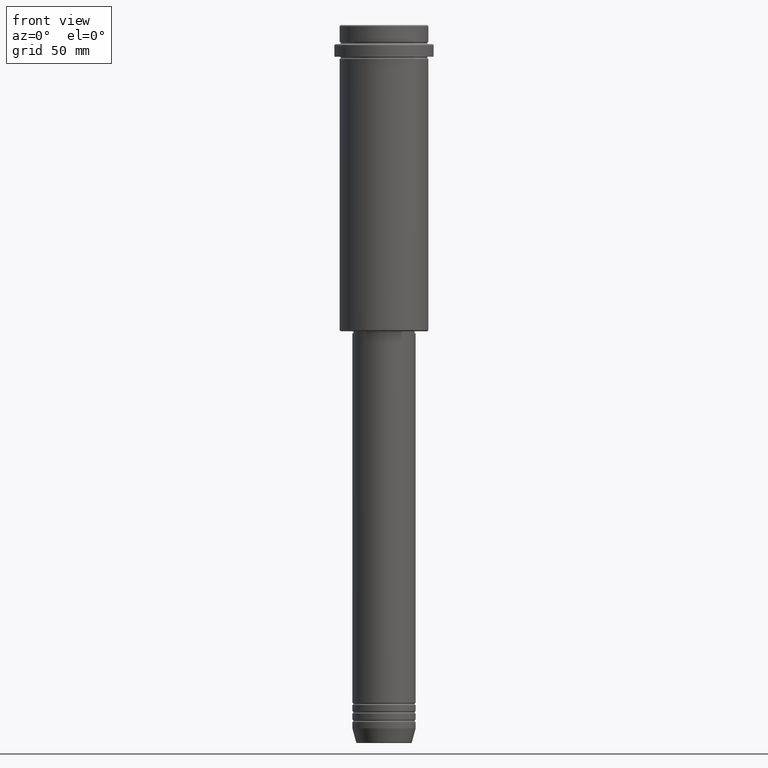
[diagram: clean part render]
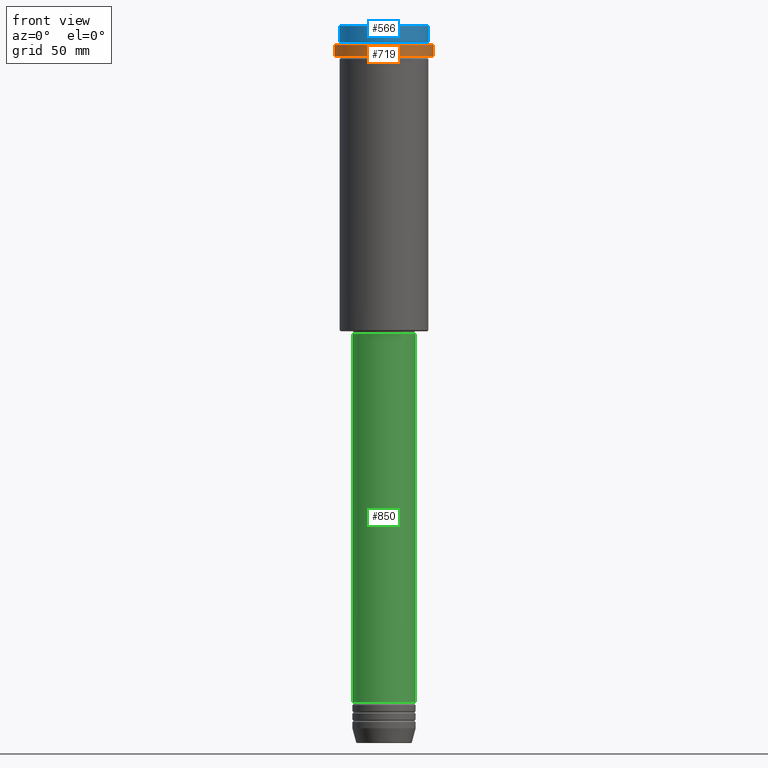
[diagram: same view with three faces highlighted in distinct colors, each labeled with its STEP entity id]
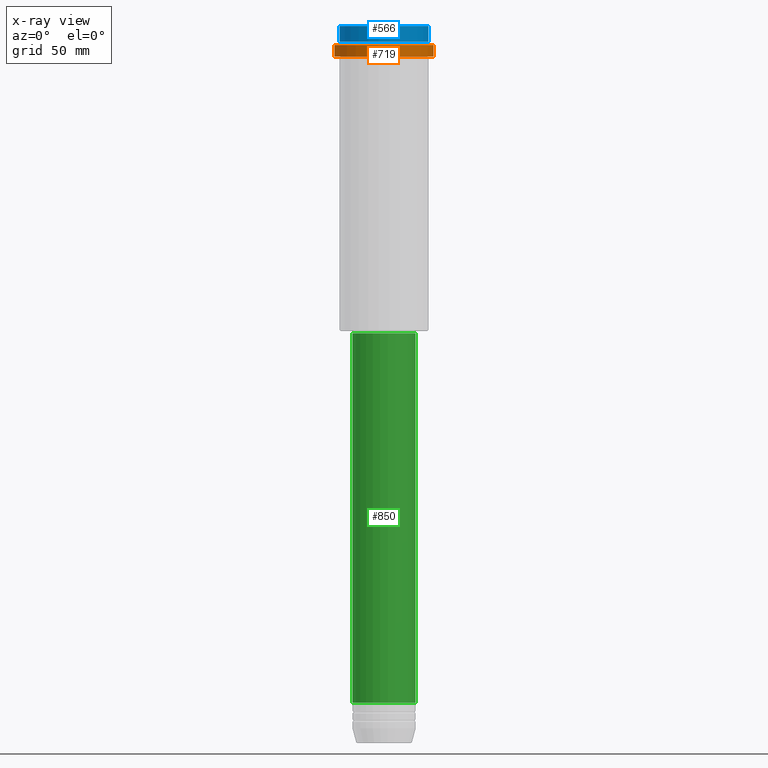
[diagram: x-ray of the same camera — body ghosted, the three highlighted faces saturated]
A machine part, front view with three faces highlighted in distinct colors.
The next image is the same camera in x-ray (body ghosted, the three faces saturated) — at least one of them is partly hidden behind the body in this view.
Their STEP definitions:

[orange] entity #719 — the highlighted cylindrical surface (partial cylindrical patch) has radius 23.5 mm, axis along (-0, -0, 1).
#108 = ORIENTED_EDGE ( 'NONE', *, *, #129, .T. ) ;
#129 = EDGE_CURVE ( 'NONE', #636, #786, #1362, .T. ) ;
#171 = VECTOR ( 'NONE', #1354, 1000.000000000000000 ) ;
#200 = EDGE_LOOP ( 'NONE', ( #590, #1337, #108, #374 ) ) ;
#245 = CARTESIAN_POINT ( 'NONE',  ( 23.50000000000000000, 0.000000000000000000, 0.000000000000000000 ) ) ;
#246 = CARTESIAN_POINT ( 'NONE',  ( -23.50000000000000000, 2.877919977996280320E-15, 0.000000000000000000 ) ) ;
#267 = VECTOR ( 'NONE', #662, 1000.000000000000000 ) ;
#277 = CARTESIAN_POINT ( 'NONE',  ( -23.50000000000000711, 2.877919977996281109E-15, -15.00000000000000178 ) ) ;
#297 = EDGE_CURVE ( 'NONE', #1119, #636, #725, .T. ) ;
#300 = DIRECTION ( 'NONE',  ( -0.000000000000000000, -0.000000000000000000, 1.000000000000000000 ) ) ;
#327 = LINE ( 'NONE', #246, #267 ) ;
#374 = ORIENTED_EDGE ( 'NONE', *, *, #418, .T. ) ;
#418 = EDGE_CURVE ( 'NONE', #786, #1053, #1176, .T. ) ;
#504 = DIRECTION ( 'NONE',  ( 1.000000000000000000, 0.000000000000000000, 0.000000000000000000 ) ) ;
#569 = AXIS2_PLACEMENT_3D ( 'NONE', #781, #765, #1195 ) ;
#590 = ORIENTED_EDGE ( 'NONE', *, *, #1244, .F. ) ;
#634 = CARTESIAN_POINT ( 'NONE',  ( 0.000000000000000000, 0.000000000000000000, -15.00000000000000178 ) ) ;
#636 = VERTEX_POINT ( 'NONE', #1131 ) ;
#662 = DIRECTION ( 'NONE',  ( -0.000000000000000000, -0.000000000000000000, 1.000000000000000000 ) ) ;
#719 = ADVANCED_FACE ( 'NONE', ( #1376 ), #1381, .T. ) ;
#720 = DIRECTION ( 'NONE',  ( 1.000000000000000000, 0.000000000000000000, 0.000000000000000000 ) ) ;
#725 = CIRCLE ( 'NONE', #767, 23.50000000000000355 ) ;
#765 = DIRECTION ( 'NONE',  ( 0.000000000000000000, 0.000000000000000000, -1.000000000000000000 ) ) ;
#767 = AXIS2_PLACEMENT_3D ( 'NONE', #634, #1261, #720 ) ;
#781 = CARTESIAN_POINT ( 'NONE',  ( 0.000000000000000000, 0.000000000000000000, -9.499999999999973355 ) ) ;
#786 = VERTEX_POINT ( 'NONE', #1063 ) ;
#1053 = VERTEX_POINT ( 'NONE', #1328 ) ;
#1063 = CARTESIAN_POINT ( 'NONE',  ( 23.50000000000000000, 0.000000000000000000, -9.499999999999973355 ) ) ;
#1119 = VERTEX_POINT ( 'NONE', #277 ) ;
#1131 = CARTESIAN_POINT ( 'NONE',  ( 23.50000000000000355, 0.000000000000000000, -15.00000000000000178 ) ) ;
#1171 = CARTESIAN_POINT ( 'NONE',  ( 0.000000000000000000, 0.000000000000000000, 0.000000000000000000 ) ) ;
#1176 = CIRCLE ( 'NONE', #569, 23.50000000000000000 ) ;
#1195 = DIRECTION ( 'NONE',  ( 1.000000000000000000, 0.000000000000000000, 0.000000000000000000 ) ) ;
#1243 = AXIS2_PLACEMENT_3D ( 'NONE', #1171, #300, #504 ) ;
#1244 = EDGE_CURVE ( 'NONE', #1119, #1053, #327, .T. ) ;
#1261 = DIRECTION ( 'NONE',  ( -0.000000000000000000, -0.000000000000000000, 1.000000000000000000 ) ) ;
#1328 = CARTESIAN_POINT ( 'NONE',  ( -23.50000000000000000, 2.877919977996280320E-15, -9.499999999999973355 ) ) ;
#1337 = ORIENTED_EDGE ( 'NONE', *, *, #297, .T. ) ;
#1354 = DIRECTION ( 'NONE',  ( -0.000000000000000000, -0.000000000000000000, 1.000000000000000000 ) ) ;
#1362 = LINE ( 'NONE', #245, #171 ) ;
#1376 = FACE_OUTER_BOUND ( 'NONE', #200, .T. ) ;
#1381 = CYLINDRICAL_SURFACE ( 'NONE', #1243, 23.50000000000000000 ) ;

[blue] entity #566 — the highlighted cylindrical surface (partial cylindrical patch) has radius 21 mm, axis along (-0, -0, 1).
#24 = ORIENTED_EDGE ( 'NONE', *, *, #1260, .T. ) ;
#26 = CARTESIAN_POINT ( 'NONE',  ( 20.99999999999999645, 0.000000000000000000, 0.000000000000000000 ) ) ;
#35 = CIRCLE ( 'NONE', #1019, 20.99999999999999645 ) ;
#71 = CARTESIAN_POINT ( 'NONE',  ( 0.000000000000000000, 0.000000000000000000, -0.5000000000000628386 ) ) ;
#169 = LINE ( 'NONE', #507, #664 ) ;
#198 = DIRECTION ( 'NONE',  ( -0.000000000000000000, -0.000000000000000000, 1.000000000000000000 ) ) ;
#215 = EDGE_CURVE ( 'NONE', #1356, #1104, #35, .T. ) ;
#272 = FACE_OUTER_BOUND ( 'NONE', #541, .T. ) ;
#315 = ORIENTED_EDGE ( 'NONE', *, *, #692, .T. ) ;
#325 = AXIS2_PLACEMENT_3D ( 'NONE', #71, #1145, #1285 ) ;
#392 = CARTESIAN_POINT ( 'NONE',  ( 20.99999999999999645, 0.000000000000000000, -7.999999999999998224 ) ) ;
#432 = LINE ( 'NONE', #26, #702 ) ;
#437 = CIRCLE ( 'NONE', #325, 20.99999999999999645 ) ;
#461 = CARTESIAN_POINT ( 'NONE',  ( -20.99999999999999645, 2.571758278209441267E-15, -0.5000000000000628386 ) ) ;
#493 = DIRECTION ( 'NONE',  ( -0.000000000000000000, -0.000000000000000000, 1.000000000000000000 ) ) ;
#507 = CARTESIAN_POINT ( 'NONE',  ( -20.99999999999999645, 2.571758278209441267E-15, 0.000000000000000000 ) ) ;
#512 = DIRECTION ( 'NONE',  ( 1.000000000000000000, 0.000000000000000000, 0.000000000000000000 ) ) ;
#537 = VERTEX_POINT ( 'NONE', #461 ) ;
#541 = EDGE_LOOP ( 'NONE', ( #875, #565, #24, #315 ) ) ;
#565 = ORIENTED_EDGE ( 'NONE', *, *, #215, .T. ) ;
#566 = ADVANCED_FACE ( 'NONE', ( #272 ), #1359, .T. ) ;
#664 = VECTOR ( 'NONE', #493, 1000.000000000000000 ) ;
#692 = EDGE_CURVE ( 'NONE', #893, #537, #437, .T. ) ;
#702 = VECTOR ( 'NONE', #1121, 1000.000000000000000 ) ;
#727 = CARTESIAN_POINT ( 'NONE',  ( 0.000000000000000000, 0.000000000000000000, -7.999999999999998224 ) ) ;
#875 = ORIENTED_EDGE ( 'NONE', *, *, #1170, .F. ) ;
#893 = VERTEX_POINT ( 'NONE', #970 ) ;
#914 = CARTESIAN_POINT ( 'NONE',  ( 0.000000000000000000, 0.000000000000000000, 0.000000000000000000 ) ) ;
#970 = CARTESIAN_POINT ( 'NONE',  ( 20.99999999999999645, 0.000000000000000000, -0.5000000000000628386 ) ) ;
#1019 = AXIS2_PLACEMENT_3D ( 'NONE', #727, #198, #512 ) ;
#1104 = VERTEX_POINT ( 'NONE', #392 ) ;
#1121 = DIRECTION ( 'NONE',  ( -0.000000000000000000, -0.000000000000000000, 1.000000000000000000 ) ) ;
#1145 = DIRECTION ( 'NONE',  ( 0.000000000000000000, 0.000000000000000000, -1.000000000000000000 ) ) ;
#1170 = EDGE_CURVE ( 'NONE', #1356, #537, #169, .T. ) ;
#1221 = CARTESIAN_POINT ( 'NONE',  ( -20.99999999999999645, 2.571758278209441267E-15, -7.999999999999998224 ) ) ;
#1235 = DIRECTION ( 'NONE',  ( 1.000000000000000000, 0.000000000000000000, 0.000000000000000000 ) ) ;
#1260 = EDGE_CURVE ( 'NONE', #1104, #893, #432, .T. ) ;
#1262 = AXIS2_PLACEMENT_3D ( 'NONE', #914, #1344, #1235 ) ;
#1285 = DIRECTION ( 'NONE',  ( 1.000000000000000000, 0.000000000000000000, 0.000000000000000000 ) ) ;
#1344 = DIRECTION ( 'NONE',  ( -0.000000000000000000, -0.000000000000000000, 1.000000000000000000 ) ) ;
#1356 = VERTEX_POINT ( 'NONE', #1221 ) ;
#1359 = CYLINDRICAL_SURFACE ( 'NONE', #1262, 20.99999999999999645 ) ;

[green] entity #850 — the highlighted cylindrical surface (edge-blend (fillet) strip) has radius 15 mm, axis along (-0, -0, 1).
#136 = DIRECTION ( 'NONE',  ( -0.000000000000000000, -0.000000000000000000, 1.000000000000000000 ) ) ;
#156 = DIRECTION ( 'NONE',  ( 1.000000000000000000, 0.000000000000000000, 0.000000000000000000 ) ) ;
#230 = LINE ( 'NONE', #373, #423 ) ;
#263 = DIRECTION ( 'NONE',  ( -0.000000000000000000, -0.000000000000000000, 1.000000000000000000 ) ) ;
#268 = AXIS2_PLACEMENT_3D ( 'NONE', #308, #319, #1297 ) ;
#308 = CARTESIAN_POINT ( 'NONE',  ( 0.000000000000000000, 0.000000000000000000, 0.000000000000000000 ) ) ;
#319 = DIRECTION ( 'NONE',  ( -0.000000000000000000, -0.000000000000000000, 1.000000000000000000 ) ) ;
#334 = VECTOR ( 'NONE', #435, 1000.000000000000000 ) ;
#340 = CARTESIAN_POINT ( 'NONE',  ( -15.00000000000000000, 1.836970198721029589E-15, -145.9999999999999432 ) ) ;
#354 = VERTEX_POINT ( 'NONE', #1304 ) ;
#373 = CARTESIAN_POINT ( 'NONE',  ( -15.00000000000000000, 1.836970198721029589E-15, 0.000000000000000000 ) ) ;
#423 = VECTOR ( 'NONE', #1034, 1000.000000000000000 ) ;
#427 = CYLINDRICAL_SURFACE ( 'NONE', #268, 15.00000000000000000 ) ;
#435 = DIRECTION ( 'NONE',  ( -0.000000000000000000, -0.000000000000000000, 1.000000000000000000 ) ) ;
#436 = EDGE_CURVE ( 'NONE', #1196, #855, #1189, .T. ) ;
#441 = FACE_OUTER_BOUND ( 'NONE', #495, .T. ) ;
#463 = VERTEX_POINT ( 'NONE', #340 ) ;
#495 = EDGE_LOOP ( 'NONE', ( #1379, #988, #942, #835 ) ) ;
#607 = EDGE_CURVE ( 'NONE', #354, #1196, #782, .T. ) ;
#646 = CARTESIAN_POINT ( 'NONE',  ( 15.00000000000000000, 0.000000000000000000, -145.9999999999999432 ) ) ;
#655 = EDGE_CURVE ( 'NONE', #463, #855, #1148, .T. ) ;
#683 = CARTESIAN_POINT ( 'NONE',  ( 0.000000000000000000, 0.000000000000000000, -320.9999999999998863 ) ) ;
#782 = CIRCLE ( 'NONE', #946, 15.00000000000000000 ) ;
#835 = ORIENTED_EDGE ( 'NONE', *, *, #655, .F. ) ;
#850 = ADVANCED_FACE ( 'NONE', ( #441 ), #427, .T. ) ;
#855 = VERTEX_POINT ( 'NONE', #646 ) ;
#942 = ORIENTED_EDGE ( 'NONE', *, *, #436, .T. ) ;
#946 = AXIS2_PLACEMENT_3D ( 'NONE', #683, #136, #156 ) ;
#960 = EDGE_CURVE ( 'NONE', #354, #463, #230, .T. ) ;
#988 = ORIENTED_EDGE ( 'NONE', *, *, #607, .T. ) ;
#1034 = DIRECTION ( 'NONE',  ( -0.000000000000000000, -0.000000000000000000, 1.000000000000000000 ) ) ;
#1035 = DIRECTION ( 'NONE',  ( 1.000000000000000000, 0.000000000000000000, 0.000000000000000000 ) ) ;
#1088 = CARTESIAN_POINT ( 'NONE',  ( 15.00000000000000000, 0.000000000000000000, 0.000000000000000000 ) ) ;
#1148 = CIRCLE ( 'NONE', #1327, 15.00000000000000000 ) ;
#1189 = LINE ( 'NONE', #1088, #334 ) ;
#1196 = VERTEX_POINT ( 'NONE', #1279 ) ;
#1247 = CARTESIAN_POINT ( 'NONE',  ( 0.000000000000000000, 0.000000000000000000, -145.9999999999999432 ) ) ;
#1279 = CARTESIAN_POINT ( 'NONE',  ( 15.00000000000000000, 0.000000000000000000, -320.9999999999998863 ) ) ;
#1297 = DIRECTION ( 'NONE',  ( 1.000000000000000000, 0.000000000000000000, 0.000000000000000000 ) ) ;
#1304 = CARTESIAN_POINT ( 'NONE',  ( -15.00000000000000000, 1.836970198721029589E-15, -320.9999999999998863 ) ) ;
#1327 = AXIS2_PLACEMENT_3D ( 'NONE', #1247, #263, #1035 ) ;
#1379 = ORIENTED_EDGE ( 'NONE', *, *, #960, .F. ) ;